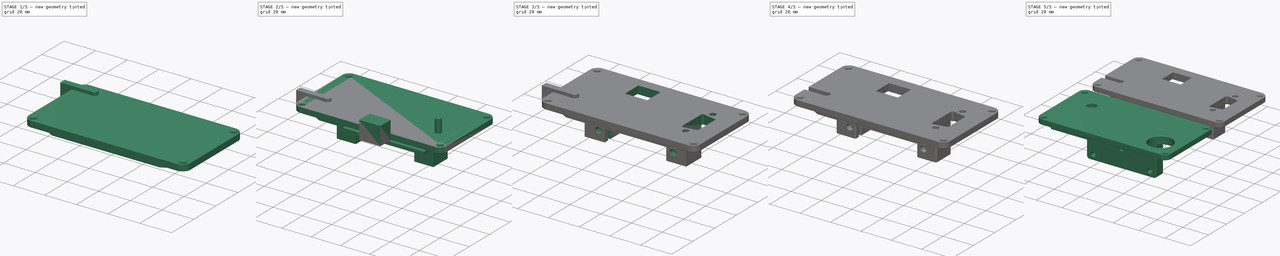
[diagram: build sequence overview — one tinted view per stage of 5, left to right]
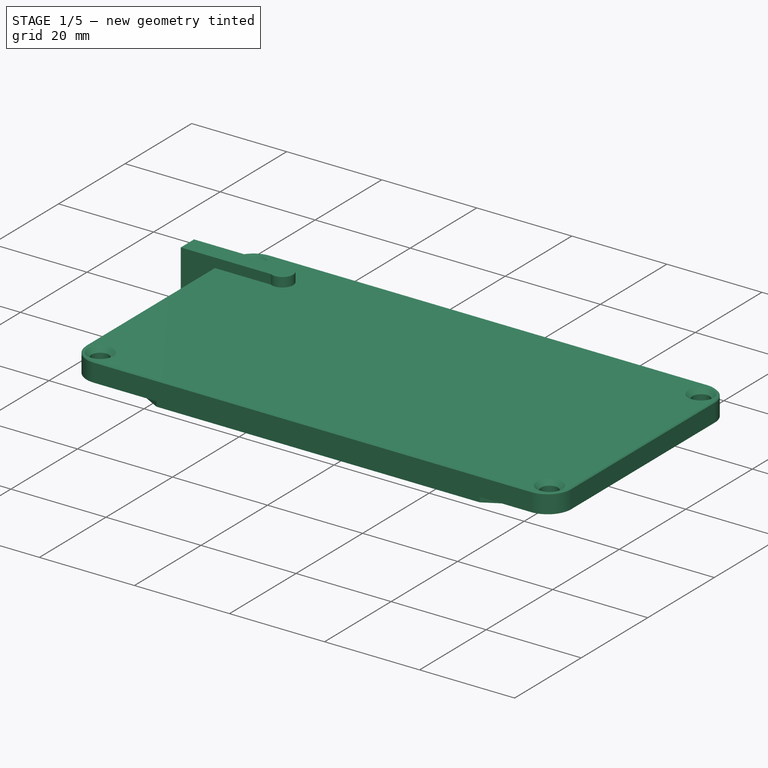
[diagram: stage 1 of 5 — iso view after this stage's code; geometry added in this stage tinted green]
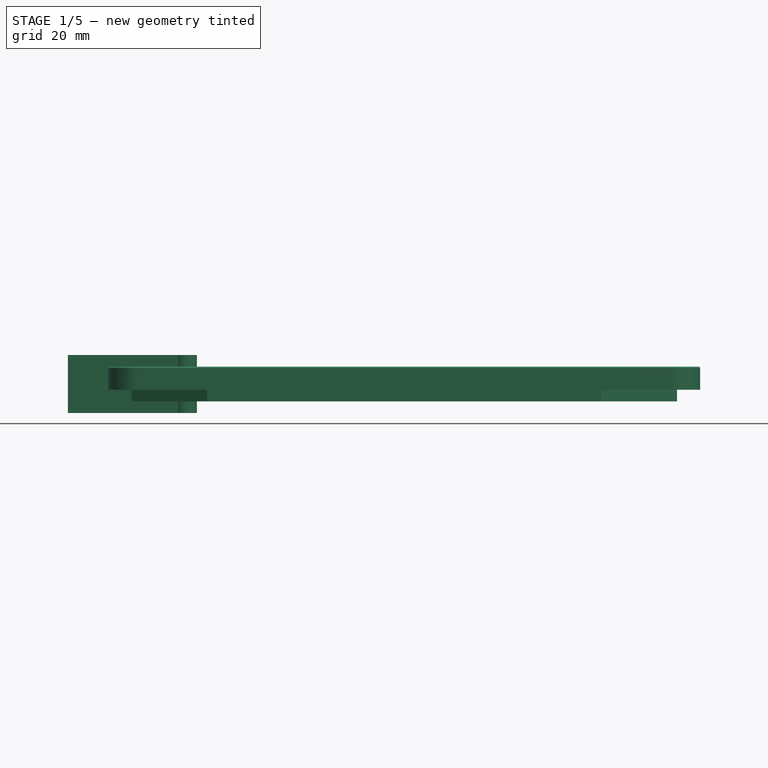
[diagram: stage 1 of 5 — front view after this stage's code; geometry added in this stage tinted green]
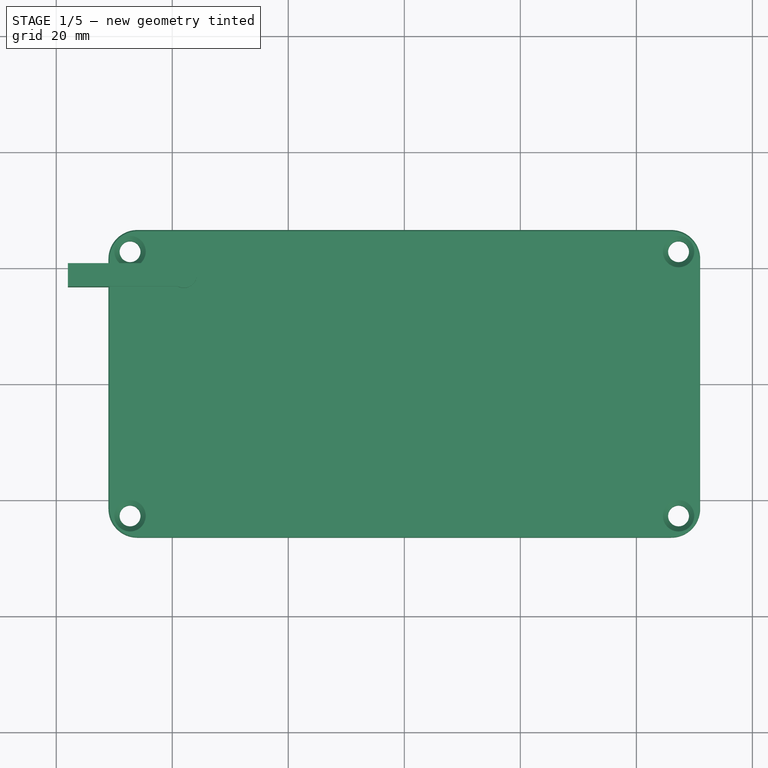
[diagram: stage 1 of 5 — top view after this stage's code; geometry added in this stage tinted green]
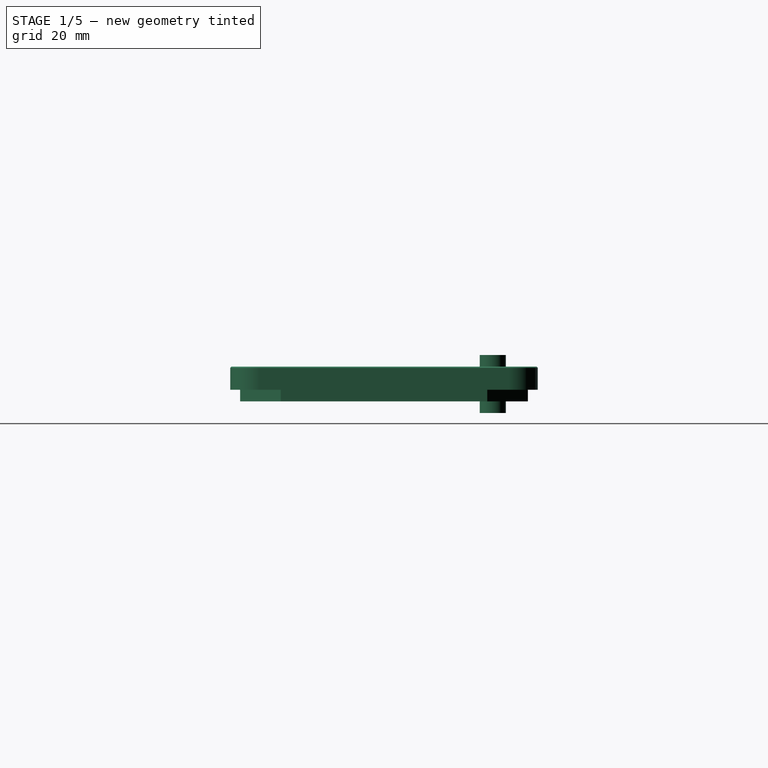
[diagram: stage 1 of 5 — right view after this stage's code; geometry added in this stage tinted green]
FCSTD DOCUMENT  (FreeCAD 0.15R4671 (Git))
Label: buttons-box-side
License: All rights reserved
LicenseURL: http://en.wikipedia.org/wiki/All_rights_reserved
objects: Sketcher::SketchObject×7, PartDesign::Pad×5, PartDesign::Chamfer×5, Part::Chamfer×5, Part::Box×4, Part::FeaturePython×3, Part::Cut×3, PartDesign::Fillet×2, Part::Cylinder×2, Part::MultiFuse×2, PartDesign::Pocket×2, Part::Fillet×1
note: 48 computed .brp shape members not serialized (recipe doc carries the construction recipe); baked Part::Feature solids carry a one-line shape summary decoded from their .brp

FEATURE [Sketcher::SketchObject] Sketch  label="Outer"
  sketch-geometry (24):
    g0: LineSegment StartX=-46 StartY=26.5 StartZ=0 EndX=46 EndY=26.5 EndZ=0
    g1: LineSegment StartX=-51 StartY=21.5 StartZ=0 EndX=-51 EndY=-21.5 EndZ=0
    g2: LineSegment StartX=-46 StartY=-26.5 StartZ=0 EndX=46 EndY=-26.5 EndZ=0
    g3: LineSegment StartX=51 StartY=21.5 StartZ=0 EndX=51 EndY=-21.5 EndZ=0
    g4: ArcOfCircle CenterX=-46 CenterY=21.5 CenterZ=0 NormalX=0 NormalY=0 NormalZ=1 Radius=5 StartAngle=1.5708 EndAngle=3.14159
    g5: LineSegment [constr] StartX=-46 StartY=26.5 StartZ=0 EndX=-46 EndY=21.5 EndZ=0
    g6: LineSegment [constr] StartX=-46 StartY=21.5 StartZ=0 EndX=-51 EndY=21.5 EndZ=0
    g7: LineSegment [constr] StartX=46 StartY=26.5 StartZ=0 EndX=46 EndY=21.5 EndZ=0
    g8: LineSegment [constr] StartX=46 StartY=21.5 StartZ=0 EndX=51 EndY=21.5 EndZ=0
    g9: LineSegment [constr] StartX=-51 StartY=-21.5 StartZ=0 EndX=-46 EndY=-21.5 EndZ=0
    g10: LineSegment [constr] StartX=-46 StartY=-21.5 StartZ=0 EndX=-46 EndY=-26.5 EndZ=0
    g11: LineSegment [constr] StartX=46 StartY=-26.5 StartZ=0 EndX=46 EndY=-21.5 EndZ=0
    g12: LineSegment [constr] StartX=46 StartY=-21.5 StartZ=0 EndX=51 EndY=-21.5 EndZ=0
    g13: ArcOfCircle CenterX=-46 CenterY=-21.5 CenterZ=0 NormalX=0 NormalY=0 NormalZ=1 Radius=5 StartAngle=3.14159 EndAngle=4.71239
    g14: ArcOfCircle CenterX=46 CenterY=-21.5 CenterZ=0 NormalX=0 NormalY=0 NormalZ=1 Radius=5 StartAngle=4.71239 EndAngle=6.28319
    g15: ArcOfCircle CenterX=46 CenterY=21.5 CenterZ=0 NormalX=0 NormalY=0 NormalZ=1 Radius=5 StartAngle=0 EndAngle=1.5708
    g16: Circle CenterX=-47.2728 CenterY=22.7728 CenterZ=0 NormalX=0 NormalY=0 NormalZ=1 Radius=1.8
    g17: Circle CenterX=47.2728 CenterY=22.7728 CenterZ=0 NormalX=0 NormalY=0 NormalZ=1 Radius=1.8
    g18: Circle CenterX=-47.2728 CenterY=-22.7728 CenterZ=0 NormalX=0 NormalY=0 NormalZ=1 Radius=1.8
    g19: Circle CenterX=47.2728 CenterY=-22.7728 CenterZ=0 NormalX=0 NormalY=0 NormalZ=1 Radius=1.8
    g20: LineSegment [constr] StartX=-46 StartY=21.5 StartZ=0 EndX=-49.5355 EndY=25.0355 EndZ=0
    g21: LineSegment [constr] StartX=-46 StartY=-21.5 StartZ=0 EndX=-49.5355 EndY=-25.0355 EndZ=0
    g22: LineSegment [constr] StartX=49.5355 StartY=-25.0355 StartZ=0 EndX=46 EndY=-21.5 EndZ=0
    g23: LineSegment [constr] StartX=46 StartY=21.5 StartZ=0 EndX=49.5355 EndY=25.0355 EndZ=0
  constraints (68):
    c: Horizontal(g2)
    c: Vertical(g1)
    c: Vertical(g3)
    c: Horizontal(g0)
    c: Coincident(g4,g0)
    c: Coincident(g4,g1)
    c: Vertical(g5)
    c: Coincident(g6,g1)
    c: Coincident(g6,g5)
    c: Coincident(g5,g0)
    c: Horizontal(g6)
    c: Coincident(g4,g5)
    c: DistanceY(g5) = -5
    c: Vertical(g7)
    c: Coincident(g8,g7)
    c: Horizontal(g8)
    c: Horizontal(g9)
    c: Coincident(g10,g9)
    c: Vertical(g10)
    c: Vertical(g11)
    c: Coincident(g12,g11)
    c: Horizontal(g12)
    c: Coincident(g13,g9)
    c: Coincident(g13,g10)
    c: Coincident(g13,g9)
    c: Coincident(g14,g11)
    c: Coincident(g14,g12)
    c: Coincident(g14,g11)
    c: Coincident(g15,g7)
    c: Coincident(g15,g8)
    c: Equal(g10,g11)
    c: Equal(g11,g7)
    c: Equal(g7,g5)
    c: Coincident(g7,g0)
    c: Coincident(g8,g3)
    c: Coincident(g12,g3)
    c: Coincident(g2,g11)
    c: Coincident(g1,g9)
    c: Coincident(g10,g2)
    c: DistanceX(g3,g1) = -102
    c: DistanceY(g0,g2) = -53
    c: Symmetric(g3,g1,g-2)
    c: Symmetric(g2,g0,g-1)
    c: Radius(g16) = 1.8
    c: Equal(g19,g17)
    c: Equal(g17,g16)
    c: Equal(g16,g18)
    c: PointOnObject(g4,g16)
    c: Coincident(g20,g4)
    c: PointOnObject(g20,g4)
    c: Symmetric(g0,g1,g20)
    c: PointOnObject(g16,g20)
    c: Coincident(g21,g9)
    c: PointOnObject(g21,g13)
    c: Symmetric(g1,g2,g21)
    c: PointOnObject(g18,g21)
    c: PointOnObject(g9,g18)
    c: PointOnObject(g22,g14)
    c: Coincident(g22,g11)
    c: Symmetric(g3,g2,g22)
    c: PointOnObject(g19,g22)
    c: PointOnObject(g11,g19)
    c: Coincident(g23,g7)
    c: PointOnObject(g23,g15)
    c: Coincident(g15,g7)
    c: Symmetric(g0,g3,g23)
    c: PointOnObject(g17,g23)
    c: PointOnObject(g7,g17)
FEATURE [PartDesign::Pad] Pad
  Length = 4
  Length2 = 100
  Sketch = -> Sketch
  Type = 0
FEATURE [PartDesign::Chamfer] Chamfer
  Base = -> Pad [Edge30,Edge36,Edge33,Edge27]
  Size = 1
FEATURE [Sketcher::SketchObject] Sketch001  label="Inner"
  ExternalGeometry = -> [Chamfer]
  Placement = pos=(0,0,0) rot=(1,0,0;3.14159rad)
  Support = -> Chamfer [Face3]
  sketch-geometry (20):
    g0: LineSegment StartX=-34 StartY=24.8 StartZ=0 EndX=34 EndY=24.8 EndZ=0
    g1: LineSegment StartX=-34 StartY=24.8 StartZ=0 EndX=-47 EndY=17.8 EndZ=0
    g2: LineSegment StartX=-47 StartY=17.8 StartZ=0 EndX=-47 EndY=-17.8 EndZ=0
    g3: LineSegment StartX=-47 StartY=-17.8 StartZ=0 EndX=-40 EndY=-24.8 EndZ=0
    g4: LineSegment StartX=-40 StartY=-24.8 StartZ=0 EndX=40 EndY=-24.8 EndZ=0
    g5: LineSegment StartX=40 StartY=-24.8 StartZ=0 EndX=47 EndY=-17.8 EndZ=0
    g6: LineSegment StartX=34 StartY=24.8 StartZ=0 EndX=47 EndY=17.8 EndZ=0
    g7: LineSegment StartX=47 StartY=17.8 StartZ=0 EndX=47 EndY=-17.8 EndZ=0
    g8: LineSegment [constr] StartX=-34 StartY=26.5 StartZ=0 EndX=-34 EndY=24.8 EndZ=0
    g9: LineSegment [constr] StartX=-40 StartY=-26.5 StartZ=0 EndX=-40 EndY=-24.8 EndZ=0
    g10: LineSegment [constr] StartX=-51 StartY=17.8 StartZ=0 EndX=-47 EndY=17.8 EndZ=0
    g11: LineSegment [constr] StartX=51 StartY=17.8 StartZ=0 EndX=47 EndY=17.8 EndZ=0
    g12: LineSegment [constr] StartX=-47 StartY=-17.8 StartZ=0 EndX=-47 EndY=-24.8 EndZ=0
    g13: LineSegment [constr] StartX=-47 StartY=-24.8 StartZ=0 EndX=-40 EndY=-24.8 EndZ=0
    g14: LineSegment [constr] StartX=47 StartY=-17.8 StartZ=0 EndX=47 EndY=-24.8 EndZ=0
    g15: LineSegment [constr] StartX=40 StartY=-24.8 StartZ=0 EndX=47 EndY=-24.8 EndZ=0
    g16: LineSegment [constr] StartX=34 StartY=24.8 StartZ=0 EndX=47 EndY=24.8 EndZ=0
    g17: LineSegment [constr] StartX=47 StartY=24.8 StartZ=0 EndX=47 EndY=17.8 EndZ=0
    g18: LineSegment [constr] StartX=-34 StartY=24.8 StartZ=0 EndX=-47 EndY=24.8 EndZ=0
    g19: LineSegment [constr] StartX=-47 StartY=24.8 StartZ=0 EndX=-47 EndY=17.8 EndZ=0
  constraints (56):
    c: Horizontal(g0)
    c: Horizontal(g4)
    c: Vertical(g7)
    c: Coincident(g1,g0)
    c: Coincident(g1,g2)
    c: Coincident(g6,g0)
    c: Coincident(g6,g7)
    c: Coincident(g7,g5)
    c: Coincident(g3,g2)
    c: Coincident(g4,g3)
    c: Coincident(g4,g5)
    c: Coincident(g8,g0)
    c: PointOnObject(g8,g-5)
    c: Vertical(g8)
    c: Coincident(g11,g6)
    c: PointOnObject(g11,g-4)
    c: Horizontal(g11)
    c: Coincident(g10,g1)
    c: PointOnObject(g10,g-3)
    c: Horizontal(g10)
    c: Coincident(g9,g3)
    c: PointOnObject(g9,g-6)
    c: Vertical(g9)
    c: Equal(g8,g9)
    c: Equal(g10,g11)
    c: DistanceX(g10) = 4
    c: DistanceY(g8) = -1.7
    c: Coincident(g12,g2)
    c: Coincident(g13,g12)
    c: Coincident(g13,g3)
    c: Horizontal(g13)
    c: Vertical(g12)
    c: Equal(g12,g13)
    c: Coincident(g14,g5)
    c: Vertical(g14)
    c: Coincident(g15,g4)
    c: Coincident(g15,g14)
    c: Horizontal(g15)
    c: Coincident(g16,g0)
    c: Horizontal(g16)
    c: Coincident(g17,g16)
    c: Coincident(g17,g6)
    c: Vertical(g17)
    c: Coincident(g18,g0)
    c: Coincident(g19,g18)
    c: Coincident(g19,g1)
    c: Horizontal(g18)
    c: Vertical(g19)
    c: Equal(g16,g18)
    c: Equal(g19,g17)
    c: Vertical(g2)
    c: Equal(g14,g15)
    c: Equal(g15,g13)
    c: DistanceY(g12) = -7
    c: DistanceY(g19) = -7
    c: DistanceX(g18) = -13
FEATURE [PartDesign::Pad] Pad001  label="Chamfer003"
  Length = 2
  Length2 = 100
  Sketch = -> Sketch001
  Type = 0
FEATURE [PartDesign::Chamfer] Chamfer001  label="Chamfer004"
  Base = -> Pad001 [Edge39,Edge41,Edge45,Edge49,Edge52,Edge51,Edge47,Edge43]
  Size = 1
FEATURE [Part::Box] Box003  label="Würfel"
  Height = 10
  Length = 20
  Placement = pos=(-58,16.75,-4) rot=(0,0,1;0rad)
  Width = 4
FEATURE [Part::Cylinder] Cylinder001  label="Zylinder"
  Angle = 360
  Height = 10
  Placement = pos=(-38,18.75,-4) rot=(0,0,1;0rad)
  Radius = 2.25
FEATURE [Part::MultiFuse] Fusion001  label="USBCableCutout"
  Shapes = -> [Cylinder001,Box003]
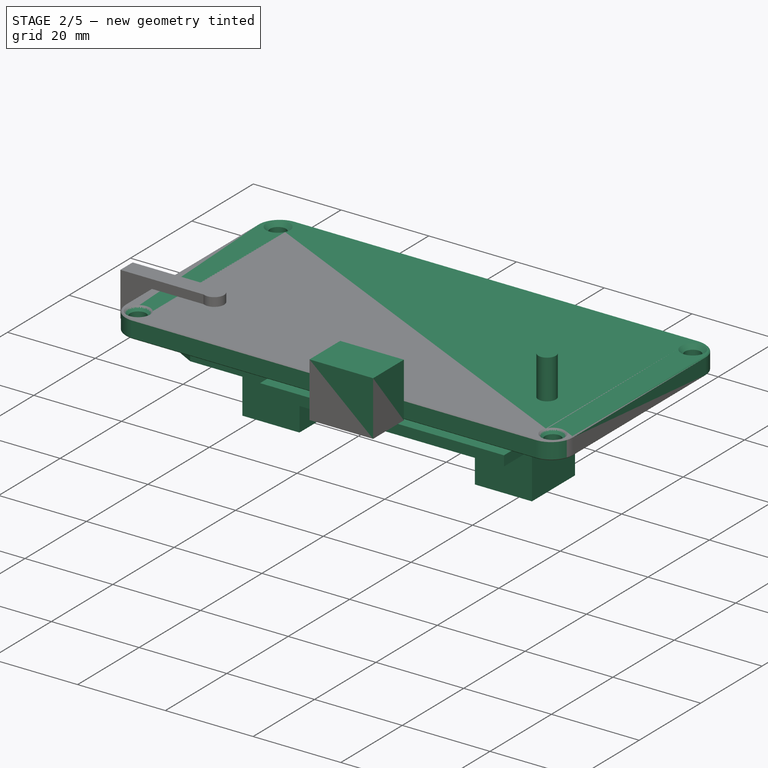
[diagram: stage 2 of 5 — iso view after this stage's code; geometry added in this stage tinted green]
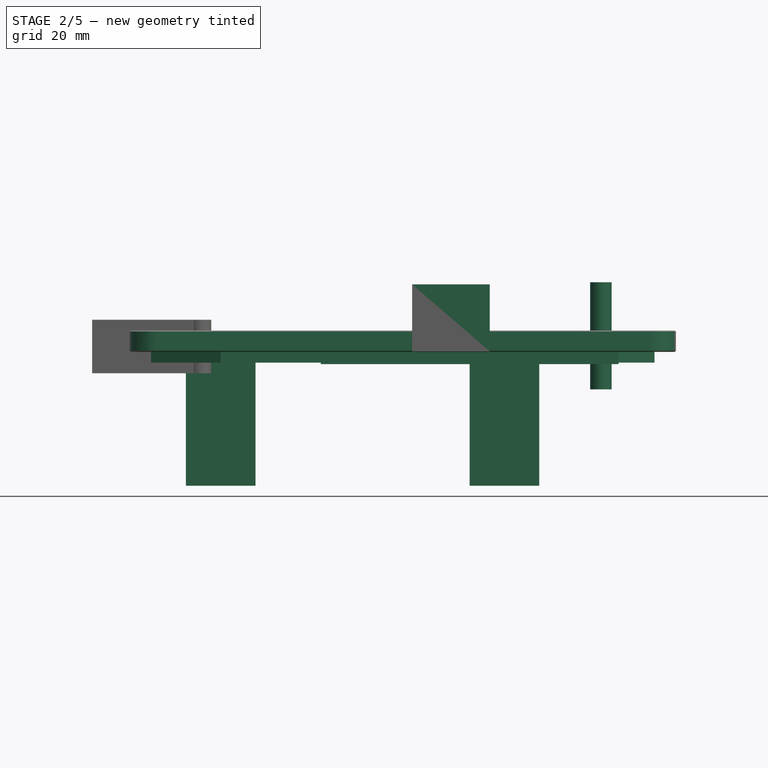
[diagram: stage 2 of 5 — front view after this stage's code; geometry added in this stage tinted green]
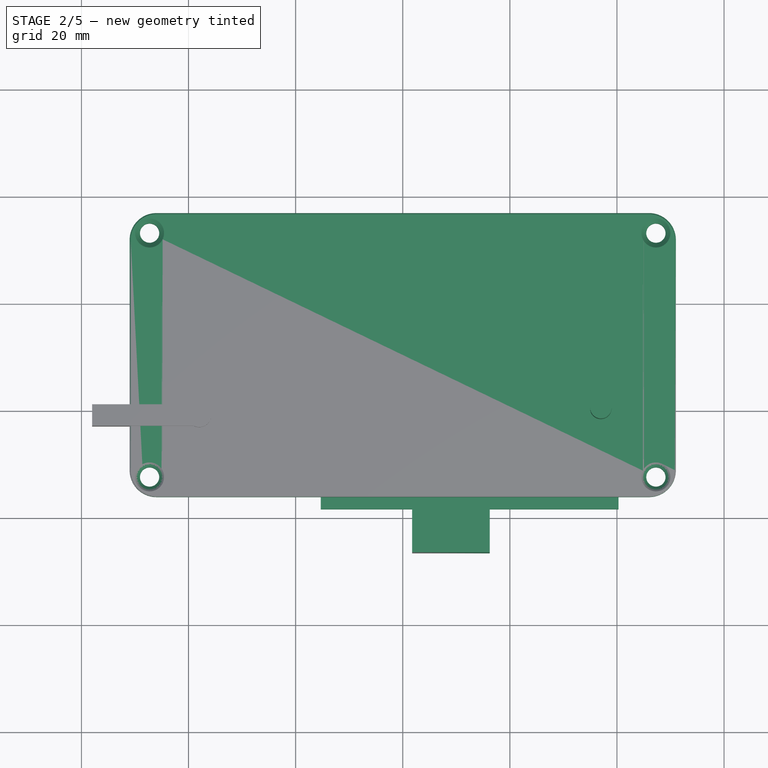
[diagram: stage 2 of 5 — top view after this stage's code; geometry added in this stage tinted green]
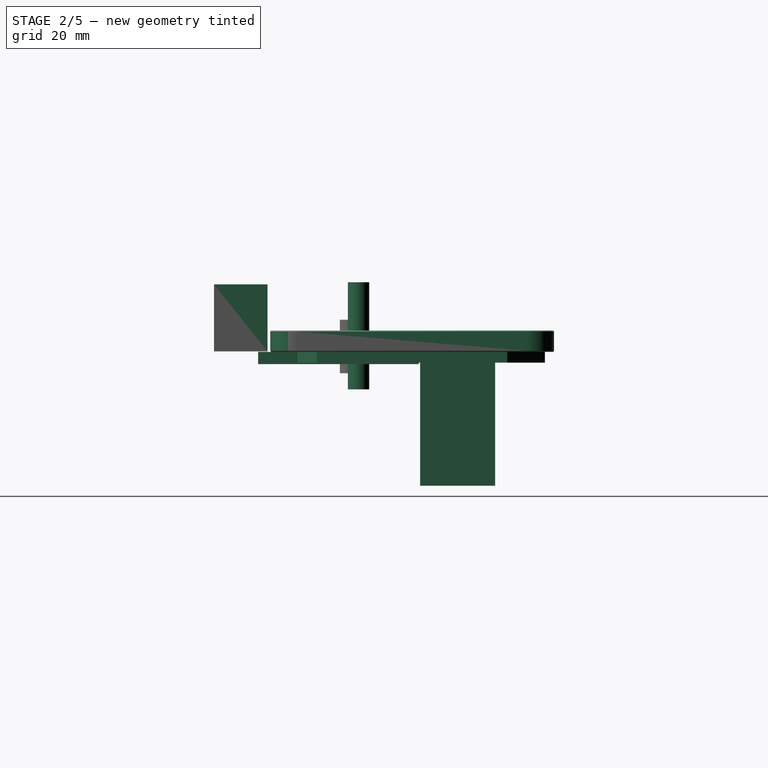
[diagram: stage 2 of 5 — right view after this stage's code; geometry added in this stage tinted green]
FEATURE [PartDesign::Chamfer] Chamfer002  label="Base"
  Base = -> Chamfer001 [Edge3,Edge11,Edge6,Edge13,Edge15,Edge16,Edge14,Edge12]
  Size = 1
FEATURE [Part::FeaturePython] Clone001  label="Base (connectors)"  # Draft clone (typed FeaturePython)
  Objects = -> [Chamfer002]
  Placement = pos=(0,30,0) rot=(0,0,1;0rad)
  Scale = (1,1,1)
FEATURE [Part::Box] Box001  label="RJ45pcb"
  Height = 2.3
  Length = 55.6
  Placement = pos=(-15.3,1.25,-2.3) rot=(0,0,1;0rad)
  Width = 30
FEATURE [Part::Box] Box002  label="RJ45hole"
  Height = 12.5
  Length = 14.5
  Placement = pos=(1.75,-7,0.1) rot=(0,0,1;0rad)
  Width = 10
FEATURE [Part::Cylinder] Cylinder  label="RJ45mnthole1"
  Angle = 360
  Height = 20
  Placement = pos=(-11.5,20,-7) rot=(0,0,1;0rad)
  Radius = 2
FEATURE [Part::FeaturePython] Clone002  label="RJ45mnthole2"  # Draft clone (typed FeaturePython)
  Objects = -> [Cylinder]
  Placement = pos=(37,20,-7) rot=(0,0,1;0rad)
  Scale = (1,1,1)
FEATURE [Sketcher::SketchObject] Sketch003  label="RJ45mounts"
  Placement = pos=(0,30,-2) rot=(1,0,0;3.14159rad)
  Support = -> Clone001 [Face43]
  sketch-geometry (10):
    g0: LineSegment StartX=-40.5 StartY=-1.5 StartZ=0 EndX=-27.5 EndY=-1.5 EndZ=0
    g1: LineSegment StartX=-27.5 StartY=-1.5 StartZ=0 EndX=-27.5 EndY=-15.5 EndZ=0
    g2: LineSegment StartX=-27.5 StartY=-15.5 StartZ=0 EndX=-40.5 EndY=-15.5 EndZ=0
    g3: LineSegment StartX=-40.5 StartY=-15.5 StartZ=0 EndX=-40.5 EndY=-1.5 EndZ=0
    g4: LineSegment StartX=12.5 StartY=-1.5 StartZ=0 EndX=25.5 EndY=-1.5 EndZ=0
    g5: LineSegment StartX=25.5 StartY=-1.5 StartZ=0 EndX=25.5 EndY=-15.5 EndZ=0
    g6: LineSegment StartX=25.5 StartY=-15.5 StartZ=0 EndX=12.5 EndY=-15.5 EndZ=0
    g7: LineSegment StartX=12.5 StartY=-15.5 StartZ=0 EndX=12.5 EndY=-1.5 EndZ=0
    g8: LineSegment [constr] StartX=12.5 StartY=-1.5 StartZ=0 EndX=12.5 EndY=0 EndZ=0
    g9: LineSegment [constr] StartX=-27.5 StartY=-1.5 StartZ=0 EndX=-27.5 EndY=0 EndZ=0
  constraints (30):
    c: Coincident(g0,g1)
    c: Coincident(g1,g2)
    c: Coincident(g2,g3)
    c: Coincident(g3,g0)
    c: Horizontal(g0)
    c: Horizontal(g2)
    c: Vertical(g1)
    c: Vertical(g3)
    c: Coincident(g4,g5)
    c: Coincident(g5,g6)
    c: Coincident(g6,g7)
    c: Coincident(g7,g4)
    c: Horizontal(g4)
    c: Horizontal(g6)
    c: Vertical(g5)
    c: Vertical(g7)
    c: Equal(g0,g4)
    c: Equal(g3,g5)
    c: DistanceY(g5) = -14
    c: DistanceX(g6) = -13
    c: Coincident(g8,g4)
    c: PointOnObject(g8,g-1)
    c: Vertical(g8)
    c: Coincident(g9,g0)
    c: Vertical(g9)
    c: PointOnObject(g9,g-1)
    c: Equal(g9,g8)
    c: DistanceY(g8) = 1.5
    c: DistanceX(g8,g9) = -40
    c: DistanceX(g-1,g8) = 12.5
FEATURE [PartDesign::Pad] Pad003  label="Pad001"
  Length = 23
  Length2 = 100
  Placement = pos=(0,30,0) rot=(0,0,1;0rad)
  Sketch = -> Sketch003
  Type = 0
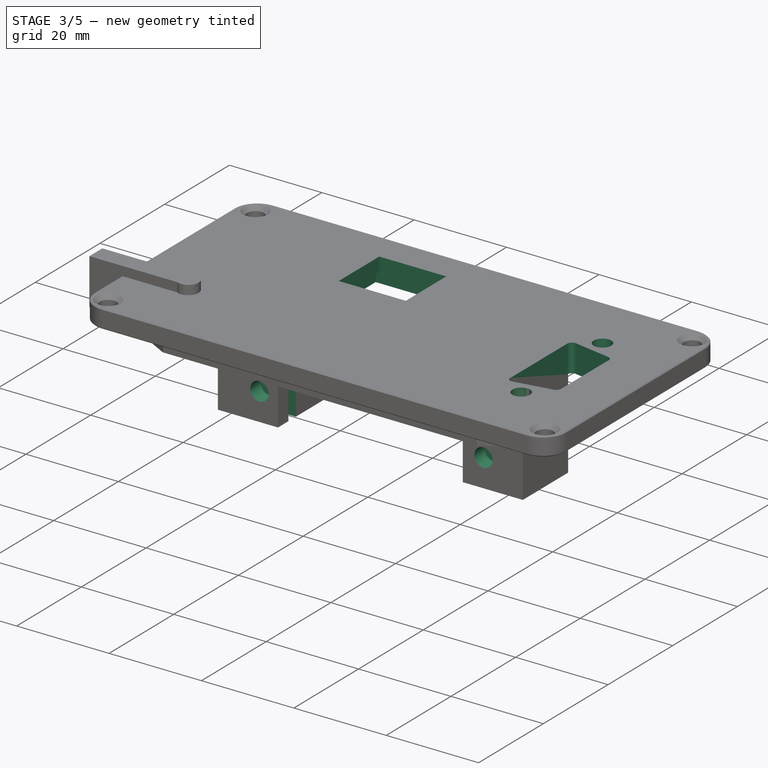
[diagram: stage 3 of 5 — iso view after this stage's code; geometry added in this stage tinted green]
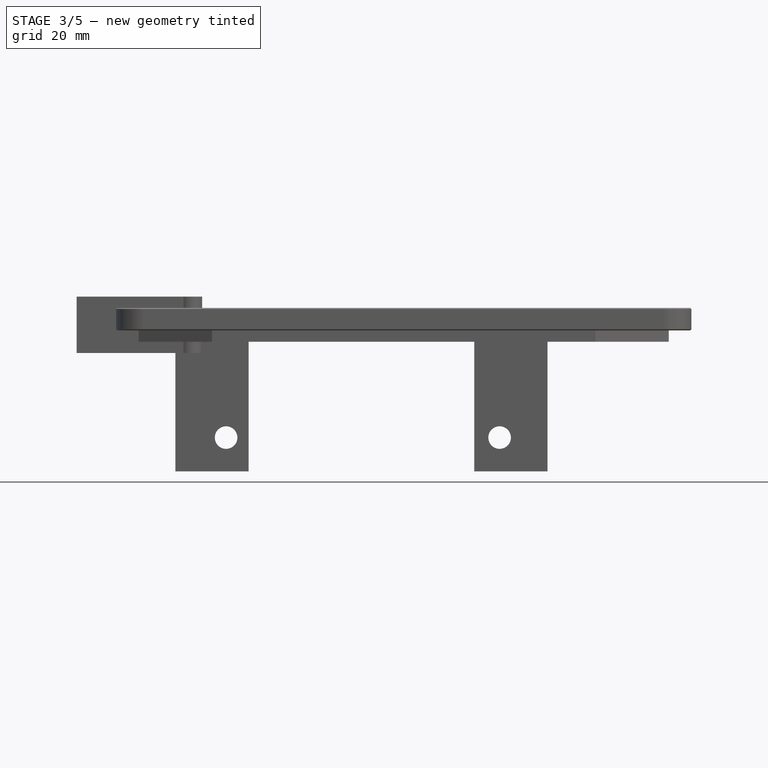
[diagram: stage 3 of 5 — front view after this stage's code; geometry added in this stage tinted green]
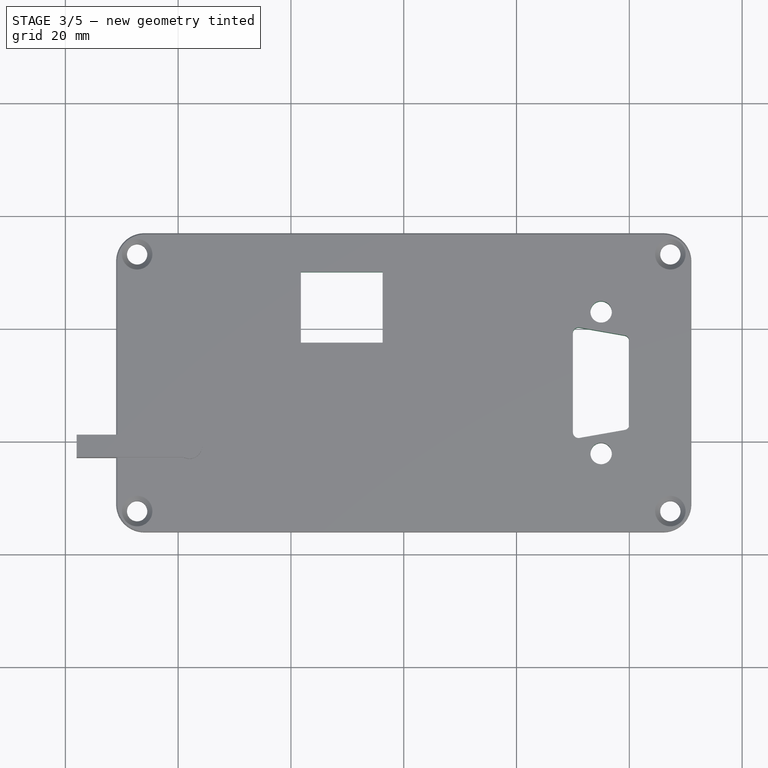
[diagram: stage 3 of 5 — top view after this stage's code; geometry added in this stage tinted green]
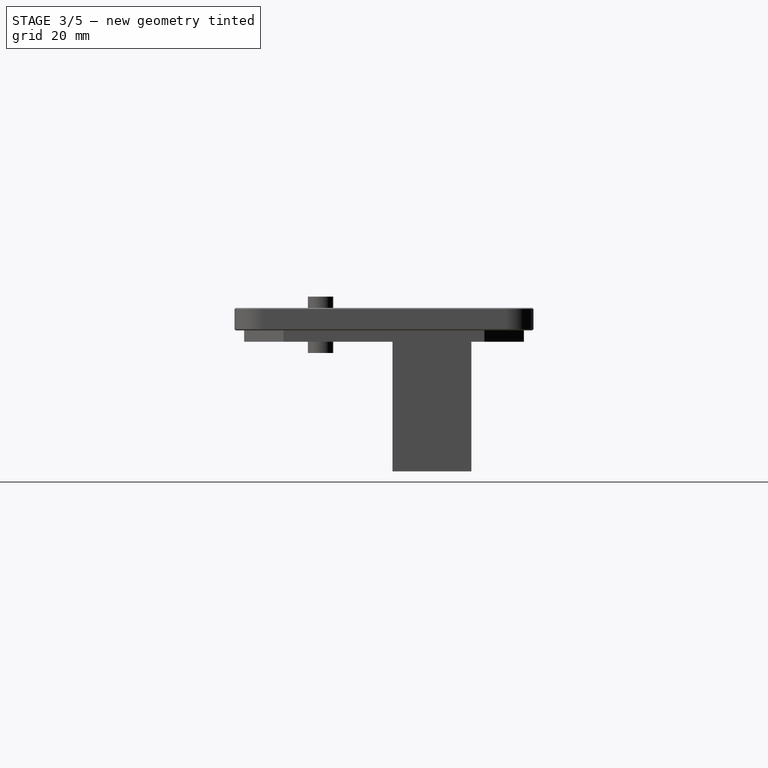
[diagram: stage 3 of 5 — right view after this stage's code; geometry added in this stage tinted green]
FEATURE [Sketcher::SketchObject] Sketch002
  Placement = pos=(35,30,-7) rot=(0,0,1;1.5708rad)
  sketch-geometry (8):
    g0: LineSegment StartX=-10 StartY=5 StartZ=0 EndX=10 EndY=5 EndZ=0
    g1: LineSegment StartX=10 StartY=5 StartZ=0 EndX=8.23673 EndY=-5 EndZ=0
    g2: LineSegment StartX=8.23673 StartY=-5 StartZ=0 EndX=-8.23673 EndY=-5 EndZ=0
    g3: LineSegment StartX=-8.23673 StartY=-5 StartZ=0 EndX=-10 EndY=5 EndZ=0
    g4: LineSegment [constr] StartX=0 StartY=5 StartZ=0 EndX=0 EndY=-5 EndZ=0
    g5: Circle CenterX=-12.56 CenterY=0 CenterZ=0 NormalX=0 NormalY=0 NormalZ=1 Radius=1.9
    g6: LineSegment [constr] StartX=-12.56 StartY=0 StartZ=0 EndX=12.56 EndY=0 EndZ=0
    g7: Circle CenterX=12.56 CenterY=0 CenterZ=0 NormalX=0 NormalY=0 NormalZ=1 Radius=1.9
  constraints (23):
    c: Horizontal(g0)
    c: Coincident(g1,g0)
    c: Coincident(g2,g1)
    c: Horizontal(g2)
    c: Coincident(g3,g0)
    c: Coincident(g2,g3)
    c: Equal(g1,g3)
    c: DistanceY(g1,g0) = 10
    c: DistanceX(g0,g0) = 20
    c: Angle(g0,g1) = 1.39626
    c: Symmetric(g0,g0,g-2)
    c: PointOnObject(g4,g0)
    c: PointOnObject(g4,g2)
    c: Symmetric(g4,g4,g-1)
    c: PointOnObject(g-1,g4)
    c: PointOnObject(g5,g-1)
    c: Radius(g5) = 1.9
    c: Coincident(g6,g5)
    c: Horizontal(g6)
    c: Coincident(g7,g6)
    c: Equal(g7,g5)
    c: Symmetric(g6,g5,g4)
    c: DistanceX(g6,g6) = 25.12
FEATURE [PartDesign::Pad] Pad002  label="SubD-9raw"
  Length = 15
  Length2 = 100
  Placement = pos=(35,30,-7) rot=(0,0,1;1.5708rad)
  Sketch = -> Sketch002
  Type = 0
FEATURE [PartDesign::Fillet] Fillet  label="SubD-9"
  Base = -> Pad002 [Edge1,Edge8,Edge2,Edge5]
  Placement = pos=(35,30,-7) rot=(0,0,1;1.5708rad)
  Radius = 1
FEATURE [Part::Box] Box  label="RJ45jack"
  Height = 14.2
  Length = 31.5
  Placement = pos=(0,0,-0.2) rot=(0,0,1;0rad)
  Width = 21.5
FEATURE [Part::MultiFuse] Fusion  label="RJ45"
  Placement = pos=(-20,37,1) rot=(-1,0,0;1.5708rad)
  Shapes = -> [Box,Cylinder,Box001,Box002,Clone002]
FEATURE [Part::Cut] Cut
  Base = -> Pad003
  Tool = -> Fusion
FEATURE [Part::Cut] Cut001
  Base = -> Cut
  Tool = -> Fillet
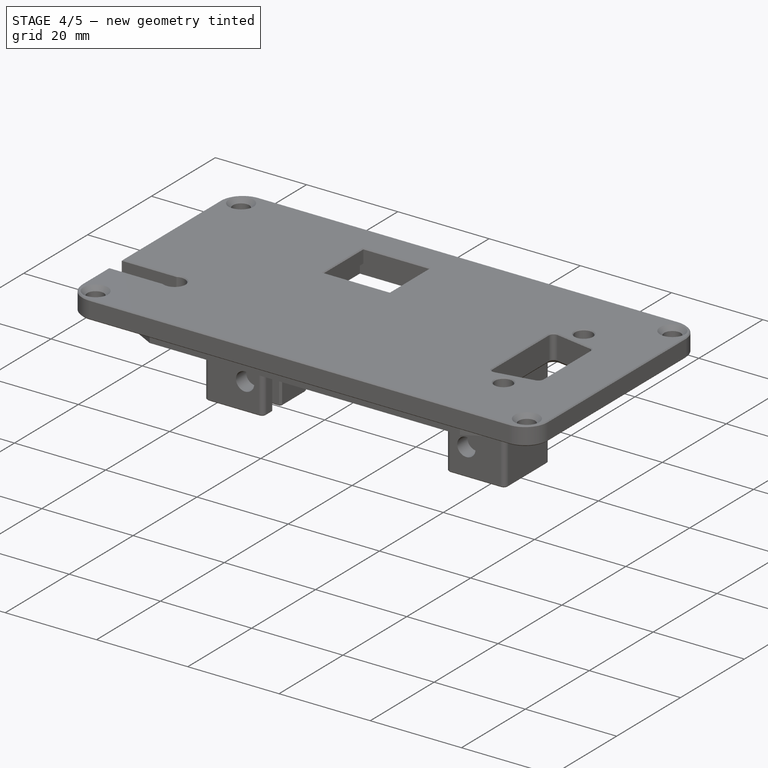
[diagram: stage 4 of 5 — iso view after this stage's code; geometry added in this stage tinted green]
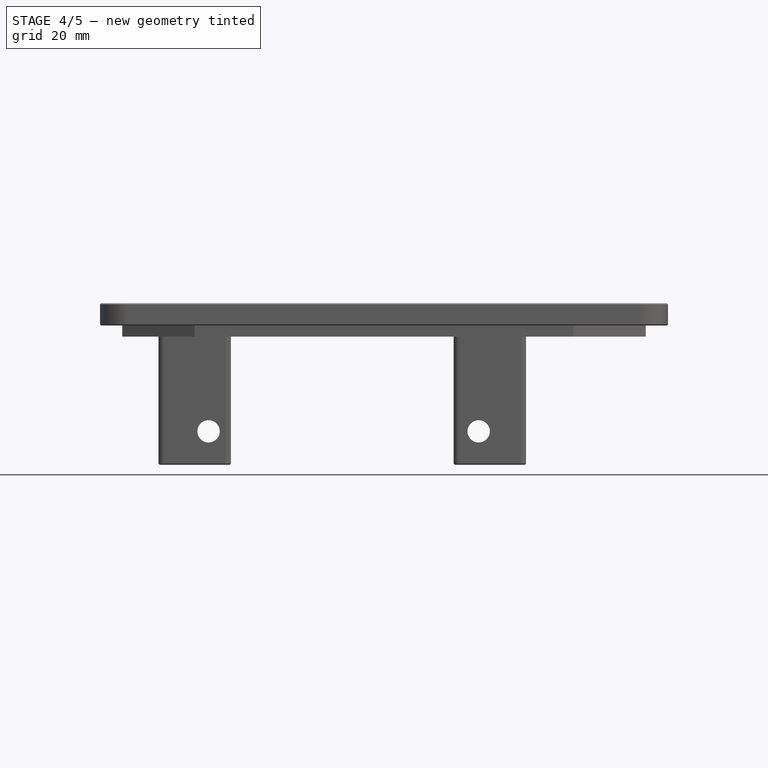
[diagram: stage 4 of 5 — front view after this stage's code; geometry added in this stage tinted green]
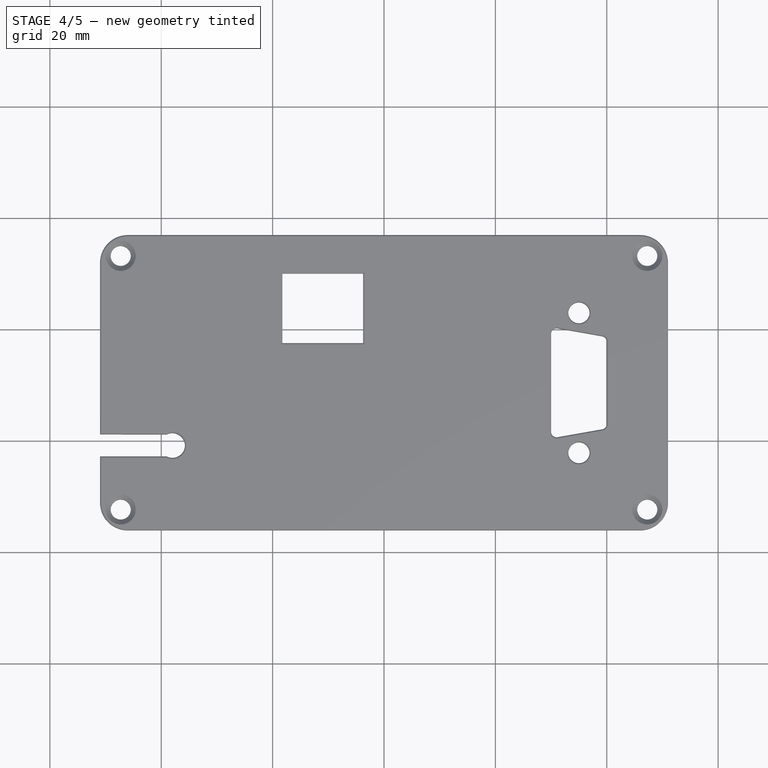
[diagram: stage 4 of 5 — top view after this stage's code; geometry added in this stage tinted green]
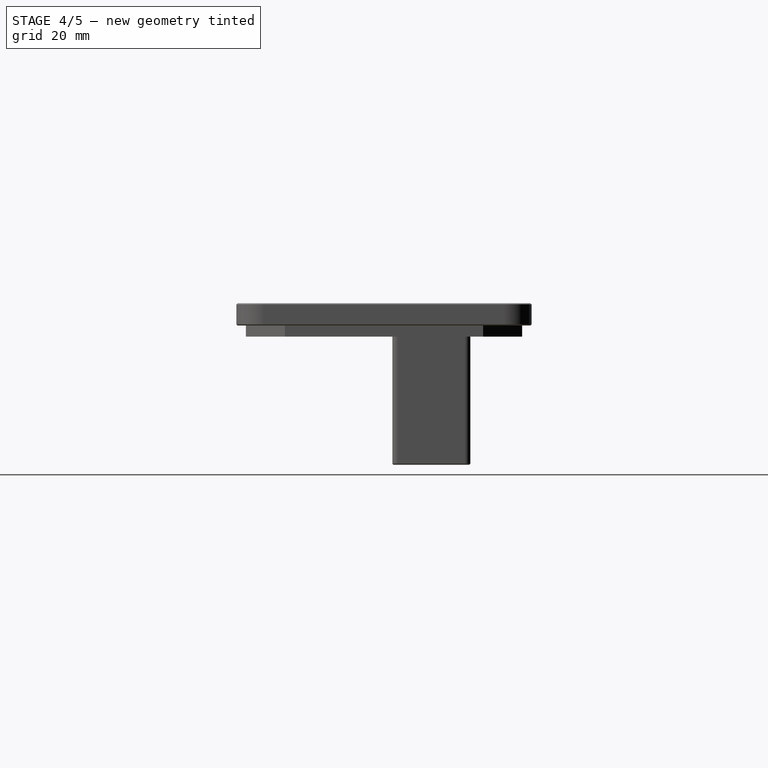
[diagram: stage 4 of 5 — right view after this stage's code; geometry added in this stage tinted green]
FEATURE [Part::Cut] Cut002
  Base = -> Cut001
  Tool = -> Fusion001
FEATURE [Part::Chamfer] Chamfer009
  Base = -> Cut002
  Edges = 18 edges r=0.2: [Edge48,Edge49,Edge50,Edge51,Edge58,Edge59,Edge60,Edge61,Edge62,Edge63,Edge64,Edge65,Edge66,Edge68,Edge70,Edge71,Edge72,Edge73]
FEATURE [Part::Fillet] Fillet003
  Base = -> Chamfer009
  Edges = 8 edges r=1: [Edge225,Edge234,Edge240,Edge243,Edge264,Edge265,Edge267,Edge271]
FEATURE [Part::Chamfer] Chamfer010
  Base = -> Fillet003
  Edges = 4 edges r=0.4: [Edge49,Edge79,Edge91,Edge98]
FEATURE [Part::Chamfer] Chamfer011
  Base = -> Chamfer010
  Edges = 28 edges r=0.2: [Edge58,Edge59,Edge62,Edge63,Edge69,Edge72,Edge78,Edge82,Edge88,Edge90,Edge96,Edge98,Edge100,Edge101,Edge104,Edge105,Edge109,Edge114,Edge116,Edge119,Edge121,Edge123,Edge125,Edge127,Edge129,Edge130,Edge184,Edge195]
FEATURE [Part::Chamfer] Chamfer012
  Base = -> Chamfer011
  Edges = 8 edges r=0.7: [Edge56,Edge57,Edge58,Edge59,Edge60,Edge61,Edge62,Edge63]
FEATURE [Part::Chamfer] Chamfer013  label="Connectors"
  Base = -> Chamfer012
  Edges = 2 edges r=0.3: [Edge54,Edge55]
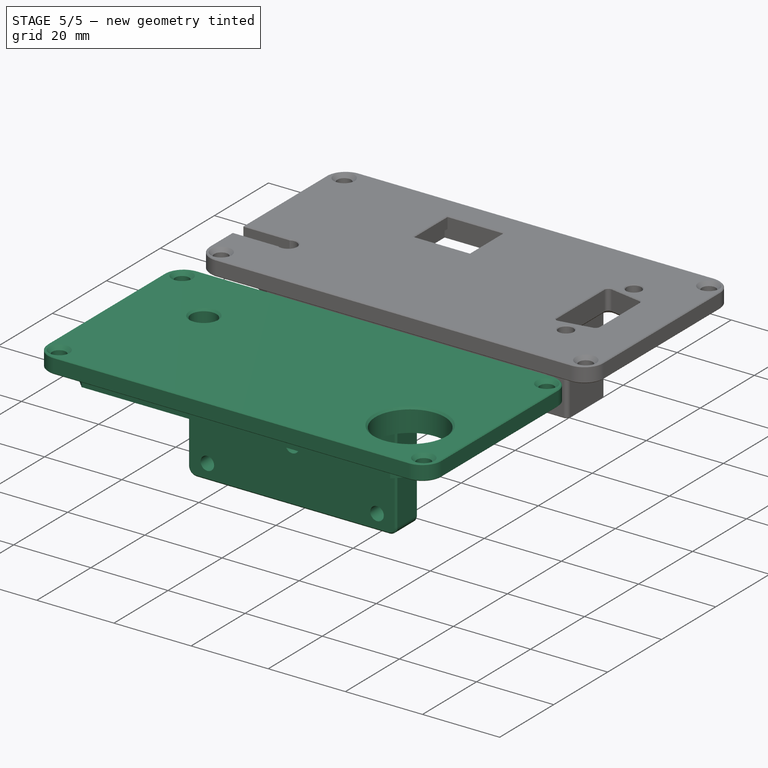
[diagram: stage 5 of 5 — iso view after this stage's code; geometry added in this stage tinted green]
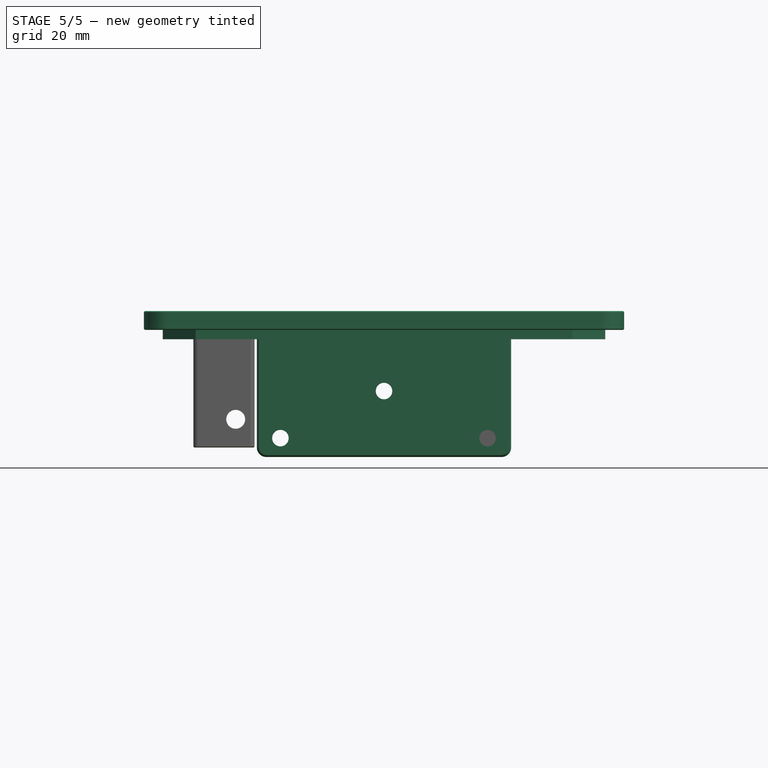
[diagram: stage 5 of 5 — front view after this stage's code; geometry added in this stage tinted green]
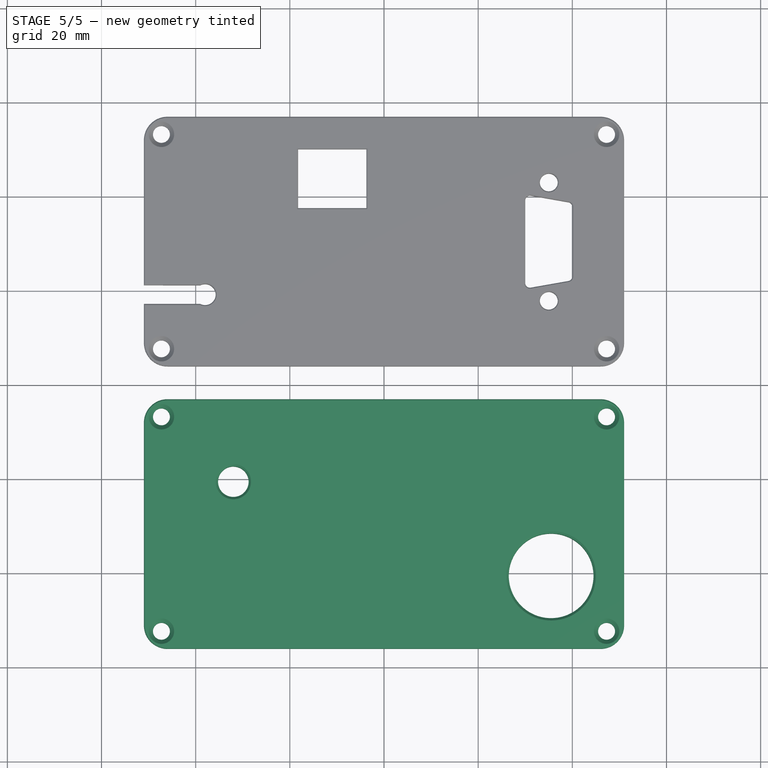
[diagram: stage 5 of 5 — top view after this stage's code; geometry added in this stage tinted green]
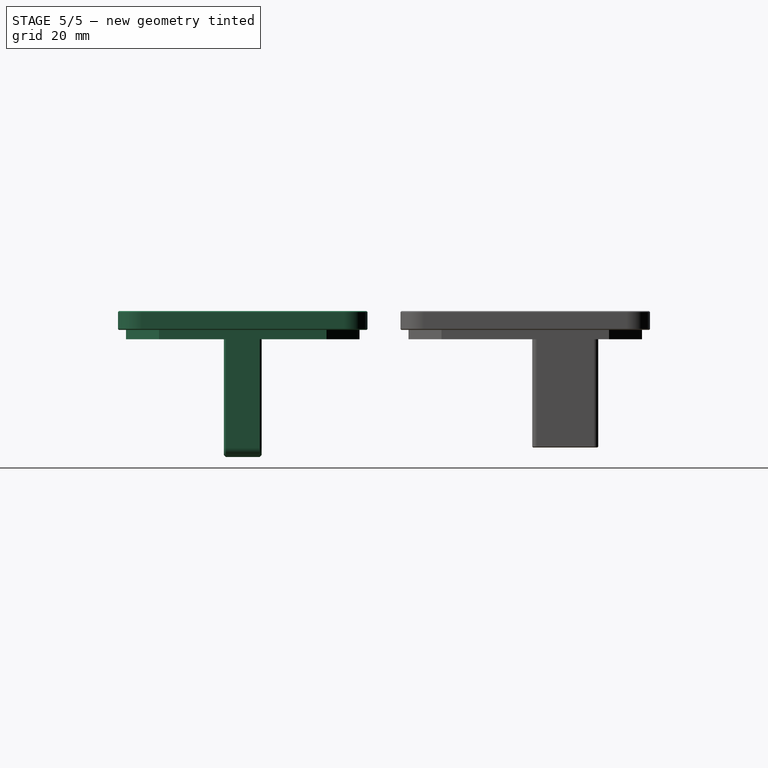
[diagram: stage 5 of 5 — right view after this stage's code; geometry added in this stage tinted green]
FEATURE [Part::FeaturePython] Clone  label="Base (buttons)"  # Draft clone (typed FeaturePython)
  Objects = -> [Chamfer002]
  Placement = pos=(0,-30,0) rot=(0,0,1;3.14159rad)
  Scale = (1,1,1)
FEATURE [Sketcher::SketchObject] Sketch004
  Placement = pos=(0,-30,-2) rot=(0,1,0;3.14159rad)
  Support = -> Clone [Face43]
  sketch-geometry (4):
    g0: LineSegment StartX=-27 StartY=4 StartZ=0 EndX=27 EndY=4 EndZ=0
    g1: LineSegment StartX=27 StartY=4 StartZ=0 EndX=27 EndY=-4 EndZ=0
    g2: LineSegment StartX=27 StartY=-4 StartZ=0 EndX=-27 EndY=-4 EndZ=0
    g3: LineSegment StartX=-27 StartY=-4 StartZ=0 EndX=-27 EndY=4 EndZ=0
  constraints (12):
    c: Coincident(g0,g1)
    c: Coincident(g1,g2)
    c: Coincident(g2,g3)
    c: Coincident(g3,g0)
    c: Horizontal(g0)
    c: Horizontal(g2)
    c: Vertical(g1)
    c: Vertical(g3)
    c: Symmetric(g0,g1,g-1)
    c: Symmetric(g0,g0,g-2)
    c: DistanceY(g1) = -8
    c: DistanceX(g0) = 54
FEATURE [PartDesign::Pad] Pad004
  Length = 25
  Length2 = 100
  Placement = pos=(0,-30,0) rot=(0,0,1;3.14159rad)
  Sketch = -> Sketch004
  Type = 0
FEATURE [PartDesign::Fillet] Fillet002
  Base = -> Pad004 [Edge2,Edge4]
  Placement = pos=(0,-30,0) rot=(0,0,1;3.14159rad)
  Radius = 2
FEATURE [Sketcher::SketchObject] Sketch005
  ExternalGeometry = -> [Fillet002]
  Placement = pos=(0,-26,0) rot=(0,0.707107,0.707107;3.14159rad)
  Support = -> Fillet002 [Face2]
  sketch-geometry (6):
    g0: Circle CenterX=0 CenterY=-13 CenterZ=0 NormalX=0 NormalY=0 NormalZ=1 Radius=1.75
    g1: Circle CenterX=-22 CenterY=-23 CenterZ=0 NormalX=0 NormalY=0 NormalZ=1 Radius=1.75
    g2: Circle CenterX=22 CenterY=-23 CenterZ=0 NormalX=0 NormalY=0 NormalZ=1 Radius=1.75
    g3: LineSegment [constr] StartX=0 StartY=-13 StartZ=0 EndX=0 EndY=-23 EndZ=0
    g4: LineSegment [constr] StartX=-22 StartY=-23 StartZ=0 EndX=22 EndY=-23 EndZ=0
    g5: LineSegment [constr] StartX=0 StartY=-23 StartZ=0 EndX=0 EndY=-27 EndZ=0
  constraints (16):
    c: PointOnObject(g0,g-2)
    c: Radius(g0) = 1.75
    c: Equal(g1,g2)
    c: Equal(g2,g0)
    c: Coincident(g3,g0)
    c: DistanceY(g3) = -10
    c: Vertical(g3)
    c: Symmetric(g2,g1,g-2)
    c: Coincident(g4,g1)
    c: Coincident(g4,g2)
    c: PointOnObject(g3,g4)
    c: Coincident(g5,g3)
    c: PointOnObject(g5,g-3)
    c: Vertical(g5)
    c: DistanceY(g5) = -4
    c: DistanceX(g4) = 44
FEATURE [PartDesign::Pocket] Pocket
  Length = 15
  Placement = pos=(0,-30,0) rot=(0,0,1;3.14159rad)
  Sketch = -> Sketch005
  Type = 0
FEATURE [Sketcher::SketchObject] Sketch006
  ExternalGeometry = -> [Pocket]
  Placement = pos=(0,-30,-2) rot=(0,1,0;3.14159rad)
  Support = -> Pocket [Face7]
  sketch-geometry (6):
    g0: LineSegment [constr] StartX=-27 StartY=-4 StartZ=0 EndX=-27 EndY=-11 EndZ=0
    g1: LineSegment [constr] StartX=27 StartY=4 StartZ=0 EndX=27 EndY=9 EndZ=0
    g2: LineSegment [constr] StartX=-27 StartY=-11 StartZ=0 EndX=-35.5 EndY=-11 EndZ=0
    g3: LineSegment [constr] StartX=27 StartY=9 StartZ=0 EndX=32 EndY=9 EndZ=0
    g4: Circle CenterX=32 CenterY=9 CenterZ=0 NormalX=0 NormalY=0 NormalZ=1 Radius=3.25
    g5: Circle CenterX=-35.5 CenterY=-11 CenterZ=0 NormalX=0 NormalY=0 NormalZ=1 Radius=9
  constraints (16):
    c: Coincident(g0,g-3)
    c: Vertical(g0)
    c: DistanceY(g0) = -7
    c: Coincident(g1,g-4)
    c: Vertical(g1)
    c: Coincident(g2,g0)
    c: Horizontal(g2)
    c: Coincident(g3,g1)
    c: Horizontal(g3)
    c: Coincident(g4,g3)
    c: Coincident(g5,g2)
    c: Radius(g4) = 3.25
    c: Radius(g5) = 9
    c: DistanceY(g1) = 5
    c: DistanceX(g2) = -8.5
    c: DistanceX(g3) = 5
FEATURE [PartDesign::Pocket] Pocket001
  Length = 10
  Placement = pos=(0,-30,0) rot=(0,0,1;3.14159rad)
  Sketch = -> Sketch006
  Type = 0
FEATURE [PartDesign::Chamfer] Chamfer007  label="Chamfer013"
  Base = -> Pocket001 [Edge55,Edge57]
  Placement = pos=(0,-30,0) rot=(0,0,1;3.14159rad)
  Size = 0.5
FEATURE [PartDesign::Chamfer] Chamfer008  label="Buttons"
  Base = -> Chamfer007 [Edge56,Edge62,Edge61,Edge60,Edge59,Edge51,Edge52,Edge50,Edge49,Edge48]
  Placement = pos=(0,-30,0) rot=(0,0,1;3.14159rad)
  Size = 0.4
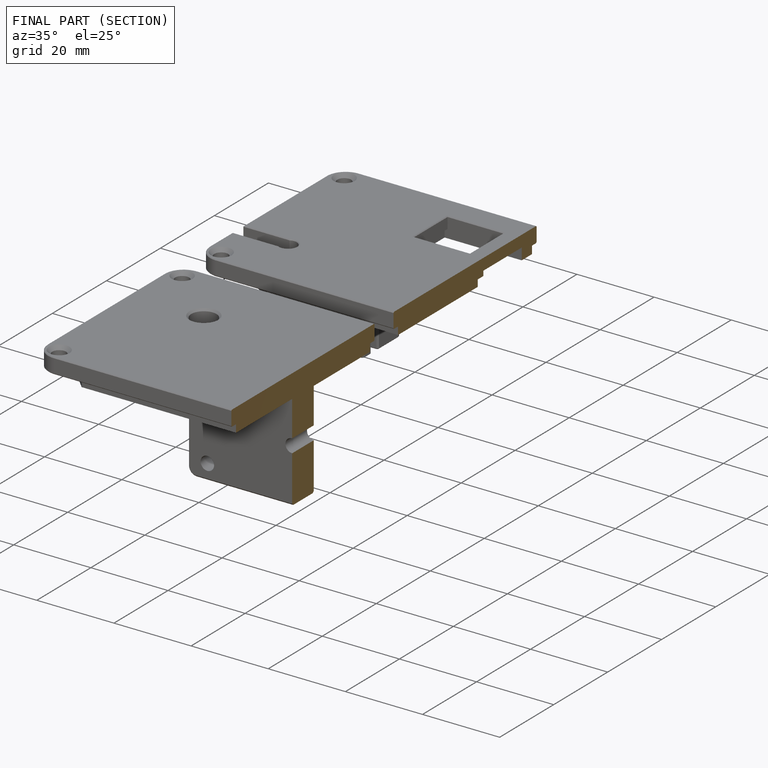
[diagram: finished part — half-section view (interior)]
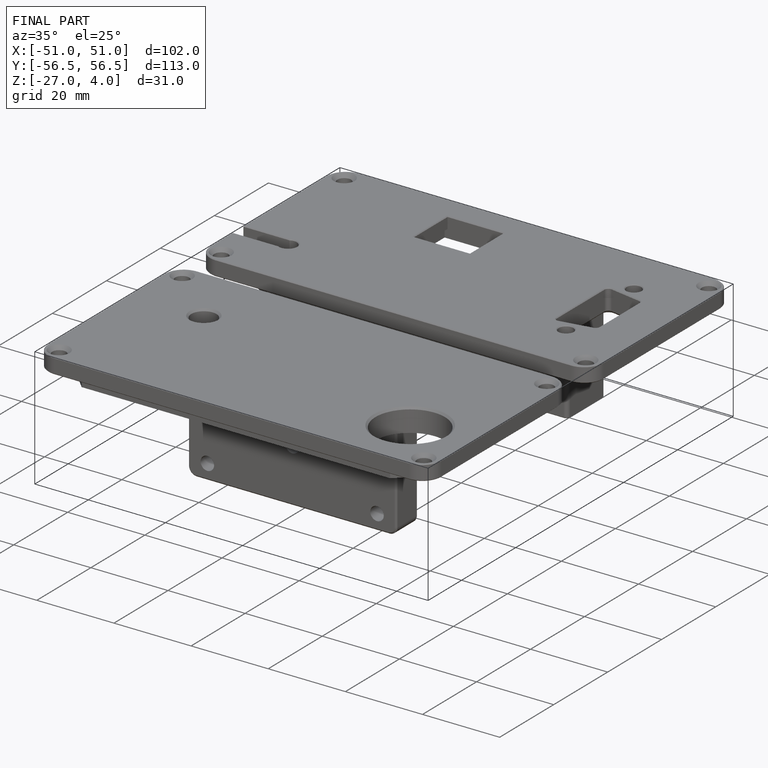
[diagram: finished part — iso view with bounding-box wireframe]
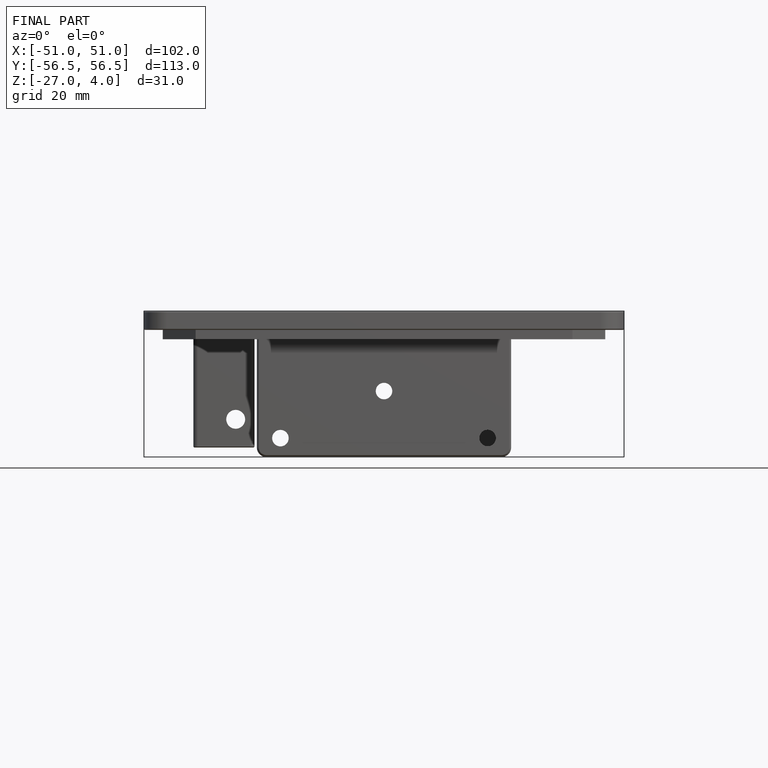
[diagram: finished part — front view with bounding-box wireframe]
